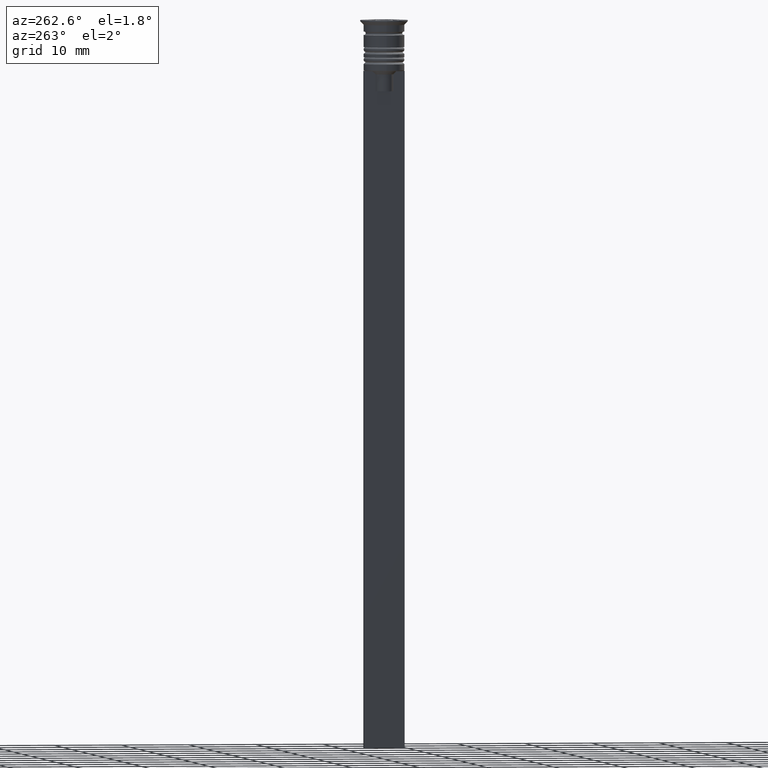
[diagram: clean part render]
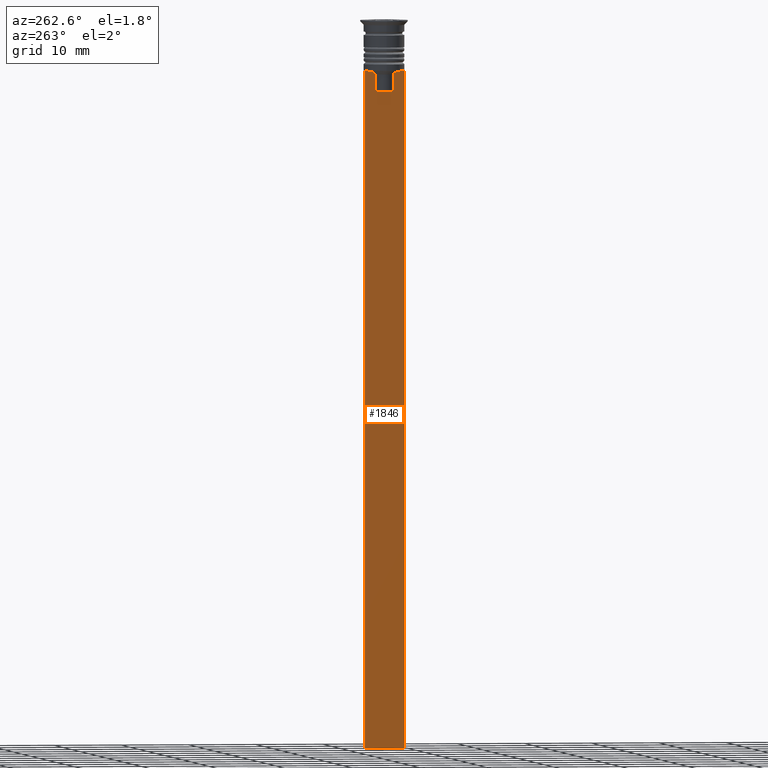
[diagram: same view with one face highlighted and labeled with its STEP entity id]
A machine part, auxiliary view. The second image highlights one B-rep face of the part: STEP entity #1846.
In plain terms, the highlighted planar face has unit normal (-1, 0, 0).
Its self-contained STEP definition (entity closure, byte-faithful):
#35 = EDGE_CURVE ( 'NONE', #392, #306, #649, .T. ) ;
#55 = VERTEX_POINT ( 'NONE', #2118 ) ;
#59 = ORIENTED_EDGE ( 'NONE', *, *, #1808, .F. ) ;
#63 = CARTESIAN_POINT ( 'NONE',  ( -0.5000000000000001110, -1.307669683062199217, -8.000000000000000000 ) ) ;
#81 = LINE ( 'NONE', #1166, #2052 ) ;
#82 = ORIENTED_EDGE ( 'NONE', *, *, #2299, .F. ) ;
#105 = CARTESIAN_POINT ( 'NONE',  ( -0.5000000000000001110, 1.307669683062199217, -10.49999999999999822 ) ) ;
#119 = EDGE_CURVE ( 'NONE', #417, #1703, #187, .T. ) ;
#137 = EDGE_CURVE ( 'NONE', #2289, #417, #2017, .T. ) ;
#170 = ORIENTED_EDGE ( 'NONE', *, *, #137, .F. ) ;
#187 = LINE ( 'NONE', #575, #590 ) ;
#241 = CARTESIAN_POINT ( 'NONE',  ( -0.5000000000000001110, 3.000000000000000000, -1.417237469701779329 ) ) ;
#303 = DIRECTION ( 'NONE',  ( 0.000000000000000000, 0.000000000000000000, -1.000000000000000000 ) ) ;
#306 = VERTEX_POINT ( 'NONE', #504 ) ;
#329 = VERTEX_POINT ( 'NONE', #1050 ) ;
#392 = VERTEX_POINT ( 'NONE', #694 ) ;
#409 = CARTESIAN_POINT ( 'NONE',  ( -0.5000000000000001110, -3.000000000000000000, -7.500000000000000000 ) ) ;
#417 = VERTEX_POINT ( 'NONE', #1229 ) ;
#424 = LINE ( 'NONE', #241, #2165 ) ;
#482 = CARTESIAN_POINT ( 'NONE',  ( -0.5000000000000001110, -3.000000000000000000, -7.500000000000000000 ) ) ;
#504 = CARTESIAN_POINT ( 'NONE',  ( -0.5000000000000001110, -1.307669683062199217, -8.000000000000000000 ) ) ;
#511 = VECTOR ( 'NONE', #2049, 1000.000000000000000 ) ;
#575 = CARTESIAN_POINT ( 'NONE',  ( -0.5000000000000001110, -3.000000000000000000, -1.417237469701779329 ) ) ;
#590 = VECTOR ( 'NONE', #1304, 1000.000000000000000 ) ;
#619 = CARTESIAN_POINT ( 'NONE',  ( -0.5000000000000001110, -1.659011726860414093, -7.667884880598472286 ) ) ;
#645 = CARTESIAN_POINT ( 'NONE',  ( -0.5000000000000001110, -1.484307477388859153, -7.835011508197190722 ) ) ;
#649 = LINE ( 'NONE', #661, #511 ) ;
#651 = EDGE_CURVE ( 'NONE', #1703, #2147, #81, .T. ) ;
#661 = CARTESIAN_POINT ( 'NONE',  ( -0.5000000000000001110, -1.307669683062199217, 0.000000000000000000 ) ) ;
#671 = DIRECTION ( 'NONE',  ( 0.000000000000000000, 0.000000000000000000, -1.000000000000000000 ) ) ;
#673 = CARTESIAN_POINT ( 'NONE',  ( -0.5000000000000001110, 1.307669683062199217, -8.000000000000000000 ) ) ;
#694 = CARTESIAN_POINT ( 'NONE',  ( -0.5000000000000001110, -1.307669683062199217, -10.49999999999999822 ) ) ;
#728 = VERTEX_POINT ( 'NONE', #1682 ) ;
#778 = CARTESIAN_POINT ( 'NONE',  ( -0.5000000000000001110, 3.000000000000000000, -107.5000000000000000 ) ) ;
#855 = EDGE_CURVE ( 'NONE', #1001, #1942, #1622, .T. ) ;
#875 = VECTOR ( 'NONE', #2271, 1000.000000000000000 ) ;
#902 = FACE_OUTER_BOUND ( 'NONE', #2269, .T. ) ;
#910 = ORIENTED_EDGE ( 'NONE', *, *, #1256, .F. ) ;
#936 = VECTOR ( 'NONE', #303, 1000.000000000000000 ) ;
#1001 = VERTEX_POINT ( 'NONE', #1071 ) ;
#1038 = DIRECTION ( 'NONE',  ( 0.000000000000000000, -1.000000000000000000, 0.000000000000000000 ) ) ;
#1050 = CARTESIAN_POINT ( 'NONE',  ( -0.5000000000000001110, 2.856571371417139904, -7.500000000000000000 ) ) ;
#1064 = CARTESIAN_POINT ( 'NONE',  ( -0.5000000000000001110, -2.856571371417139904, -7.500000000000000000 ) ) ;
#1071 = CARTESIAN_POINT ( 'NONE',  ( -0.5000000000000001110, 1.833030277982335532, -7.500000000000000000 ) ) ;
#1129 = ORIENTED_EDGE ( 'NONE', *, *, #651, .F. ) ;
#1159 = CARTESIAN_POINT ( 'NONE',  ( -0.5000000000000001110, -1.833030277982335532, -7.500000000000000000 ) ) ;
#1166 = CARTESIAN_POINT ( 'NONE',  ( -0.5000000000000001110, -3.000000000000000000, -107.5000000000000000 ) ) ;
#1195 = AXIS2_PLACEMENT_3D ( 'NONE', #1435, #1590, #2308 ) ;
#1198 = ORIENTED_EDGE ( 'NONE', *, *, #1395, .T. ) ;
#1205 = CARTESIAN_POINT ( 'NONE',  ( -0.5000000000000001110, 1.399999999999997691, -10.49999999999999822 ) ) ;
#1226 = VECTOR ( 'NONE', #1038, 1000.000000000000000 ) ;
#1229 = CARTESIAN_POINT ( 'NONE',  ( -0.5000000000000001110, -3.000000000000000000, -7.500000000000000000 ) ) ;
#1233 = VECTOR ( 'NONE', #2235, 1000.000000000000000 ) ;
#1256 = EDGE_CURVE ( 'NONE', #329, #1001, #1552, .T. ) ;
#1273 = EDGE_CURVE ( 'NONE', #306, #728, #1686, .T. ) ;
#1304 = DIRECTION ( 'NONE',  ( 0.000000000000000000, 0.000000000000000000, -1.000000000000000000 ) ) ;
#1307 = VECTOR ( 'NONE', #2167, 1000.000000000000000 ) ;
#1338 = ORIENTED_EDGE ( 'NONE', *, *, #119, .F. ) ;
#1374 = ORIENTED_EDGE ( 'NONE', *, *, #2184, .F. ) ;
#1395 = EDGE_CURVE ( 'NONE', #55, #2147, #424, .T. ) ;
#1412 = VECTOR ( 'NONE', #1797, 1000.000000000000000 ) ;
#1435 = CARTESIAN_POINT ( 'NONE',  ( -0.5000000000000001110, -3.000000000000000000, -1.417237469701779329 ) ) ;
#1453 = ORIENTED_EDGE ( 'NONE', *, *, #855, .F. ) ;
#1480 = CARTESIAN_POINT ( 'NONE',  ( -0.5000000000000001110, -3.000000000000000000, -107.5000000000000000 ) ) ;
#1533 = CARTESIAN_POINT ( 'NONE',  ( -0.5000000000000001110, 1.833030277982335532, -7.500000000000000000 ) ) ;
#1540 = DIRECTION ( 'NONE',  ( 0.000000000000000000, 1.000000000000000000, 0.000000000000000000 ) ) ;
#1552 = LINE ( 'NONE', #482, #875 ) ;
#1590 = DIRECTION ( 'NONE',  ( -1.000000000000000000, 0.000000000000000000, 0.000000000000000000 ) ) ;
#1616 = CARTESIAN_POINT ( 'NONE',  ( -0.5000000000000001110, -3.000000000000000000, -7.500000000000000000 ) ) ;
#1622 = B_SPLINE_CURVE_WITH_KNOTS ( 'NONE', 3,
 ( #1533, #1696, #1708, #673 ),
 .UNSPECIFIED., .F., .F.,
 ( 4, 4 ),
 ( 0.003278537493109840491, 0.004003794023484932504 ),
 .UNSPECIFIED. ) ;
#1682 = CARTESIAN_POINT ( 'NONE',  ( -0.5000000000000001110, -1.833030277982335532, -7.500000000000000000 ) ) ;
#1686 = B_SPLINE_CURVE_WITH_KNOTS ( 'NONE', 3,
 ( #63, #645, #619, #1159 ),
 .UNSPECIFIED., .F., .F.,
 ( 4, 4 ),
 ( 0.007225659348748070081, 0.007950554640278040958 ),
 .UNSPECIFIED. ) ;
#1694 = CARTESIAN_POINT ( 'NONE',  ( -0.5000000000000001110, -3.000000000000000000, -7.500000000000000000 ) ) ;
#1696 = CARTESIAN_POINT ( 'NONE',  ( -0.5000000000000001110, 1.659046061654642523, -7.667851756010361619 ) ) ;
#1703 = VERTEX_POINT ( 'NONE', #1480 ) ;
#1708 = CARTESIAN_POINT ( 'NONE',  ( -0.5000000000000001110, 1.484355510416485391, -7.834966642958598015 ) ) ;
#1752 = LINE ( 'NONE', #1765, #936 ) ;
#1765 = CARTESIAN_POINT ( 'NONE',  ( -0.5000000000000001110, 1.307669683062199217, 0.000000000000000000 ) ) ;
#1769 = EDGE_CURVE ( 'NONE', #1942, #2194, #1752, .T. ) ;
#1788 = ORIENTED_EDGE ( 'NONE', *, *, #35, .F. ) ;
#1789 = CARTESIAN_POINT ( 'NONE',  ( -0.5000000000000001110, 1.307669683062199217, -8.000000000000000000 ) ) ;
#1797 = DIRECTION ( 'NONE',  ( 0.000000000000000000, -1.000000000000000000, 0.000000000000000000 ) ) ;
#1808 = EDGE_CURVE ( 'NONE', #728, #2289, #1937, .T. ) ;
#1820 = LINE ( 'NONE', #1616, #1307 ) ;
#1846 = ADVANCED_FACE ( 'NONE', ( #902 ), #1947, .T. ) ;
#1889 = ORIENTED_EDGE ( 'NONE', *, *, #1273, .F. ) ;
#1937 = LINE ( 'NONE', #1694, #1233 ) ;
#1942 = VERTEX_POINT ( 'NONE', #1789 ) ;
#1947 = PLANE ( 'NONE',  #1195 ) ;
#2017 = LINE ( 'NONE', #409, #1412 ) ;
#2049 = DIRECTION ( 'NONE',  ( -0.000000000000000000, -0.000000000000000000, 1.000000000000000000 ) ) ;
#2052 = VECTOR ( 'NONE', #1540, 1000.000000000000000 ) ;
#2078 = ORIENTED_EDGE ( 'NONE', *, *, #1769, .F. ) ;
#2118 = CARTESIAN_POINT ( 'NONE',  ( -0.5000000000000001110, 3.000000000000000000, -7.500000000000000000 ) ) ;
#2147 = VERTEX_POINT ( 'NONE', #778 ) ;
#2165 = VECTOR ( 'NONE', #671, 1000.000000000000000 ) ;
#2167 = DIRECTION ( 'NONE',  ( 0.000000000000000000, -1.000000000000000000, 0.000000000000000000 ) ) ;
#2184 = EDGE_CURVE ( 'NONE', #2194, #392, #2279, .T. ) ;
#2194 = VERTEX_POINT ( 'NONE', #105 ) ;
#2235 = DIRECTION ( 'NONE',  ( 0.000000000000000000, -1.000000000000000000, 0.000000000000000000 ) ) ;
#2269 = EDGE_LOOP ( 'NONE', ( #1453, #910, #82, #1198, #1129, #1338, #170, #59, #1889, #1788, #1374, #2078 ) ) ;
#2271 = DIRECTION ( 'NONE',  ( 0.000000000000000000, -1.000000000000000000, 0.000000000000000000 ) ) ;
#2279 = LINE ( 'NONE', #1205, #1226 ) ;
#2289 = VERTEX_POINT ( 'NONE', #1064 ) ;
#2299 = EDGE_CURVE ( 'NONE', #55, #329, #1820, .T. ) ;
#2308 = DIRECTION ( 'NONE',  ( 0.000000000000000000, 0.000000000000000000, 1.000000000000000000 ) ) ;